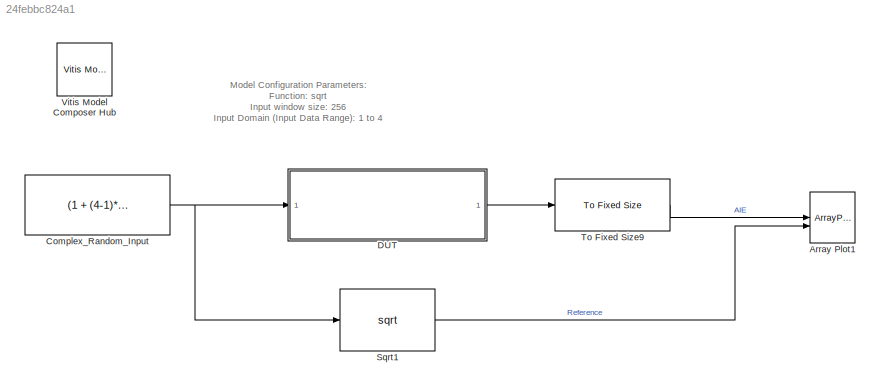
MODEL slx_24febbc824a1
KIND model
CONFIG AbsTol = auto
CONFIG EnableMultiTasking = off
CONFIG FixedStep = auto
CONFIG MaxStep = auto
CONFIG MinStep = auto
CONFIG RelTol = 1e-3
CONFIG SampleTimeConstraint = Unconstrained
CONFIG SolverName = VariableStepAuto
CONFIG StartTime = 0.0
CONFIG StopTime = 512
BLOCK [ArrayPlot] Array Plot1
  GraphicalSettings = {"Style":{"BackgroundColor":[0.12941176470588237,0.12941176470588237,0.12941176470588237],"AxesColor":[0.070588235294117646,0.070588235294117646,0.070588235294117646],"LabelsColor":[0.85098039215686272,0.85098039215686272,0.85098039215686272],"PreserveColors":false,"Visible":[true,true],"LineStyle":["-","-"],"LineWidth":[1.5,1.5],"BarWidth":[0.9,0.9],"LineColor":[[1,0.90980392156862744,0.392156862...<+177ch>
  NumInputPorts = 2
  ScopeFrameLocation = window
  ShowLegend = on
  Visible = on
  WasSavedAsWebScope = on
  WindowPosition = [863.000000,486.000000,800.000000,500.000000,]
  YLimits = [0.8802 2.1161]
BLOCK [Constant] Complex_Random_Input
  OutDataTypeStr = single
  SampleTime = 1
  Value = (1 + (4-1)*rand(1, 256))
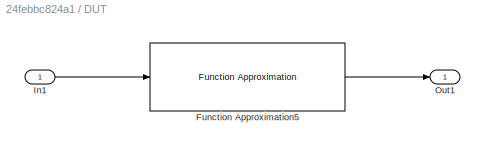
BLOCK [SubSystem] DUT
BLOCK [Reference] DUT/Function Approximation5  REF=aieDSP/Function Approximation
  SourceBlock = aieDSP/Function Approximation
  SourceType = Function Approximation
BLOCK [Inport] DUT/In1
BLOCK [Outport] DUT/Out1
BLOCK [Sqrt] Sqrt1
BLOCK [Reference] To Fixed Size9  REF=aieUtilities/To Fixed Size
  SourceBlock = aieUtilities/To Fixed Size
  SourceType = To Fixed Size
BLOCK [Reference] Vitis Model Composer Hub  REF=vmcUtilities/Vitis Model Composer Hub
  SourceBlock = vmcUtilities/Vitis Model Composer Hub
  SourceType = VMC Hub
  Tag = genX
  UserDataPersistent = on
ANNOTATION (root): Model Configuration Parameters: Function: sqrt Input window size : 256 Input Domain (Input Data Range): 1 to 4
NET Complex_Random_Input:1 -> DUT:1, Sqrt1:1
LINE DUT/Function Approximation5:1 -> DUT/Out1:1
LINE DUT/In1:1 -> DUT/Function Approximation5:1
LINE DUT:1 -> To Fixed Size9:1
LINE Sqrt1:1 -> Array Plot1:2
LINE To Fixed Size9:1 -> Array Plot1:1
note: NET lines group one-source signal fan-out (src -> all destinations, sorted); 1:1 wires keep LINE
